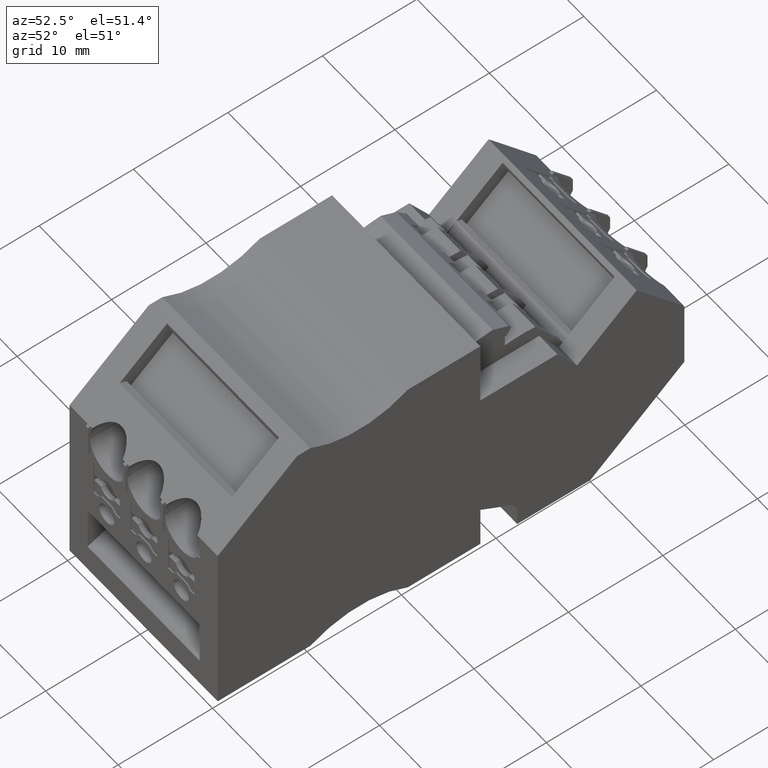
[diagram: clean part render]
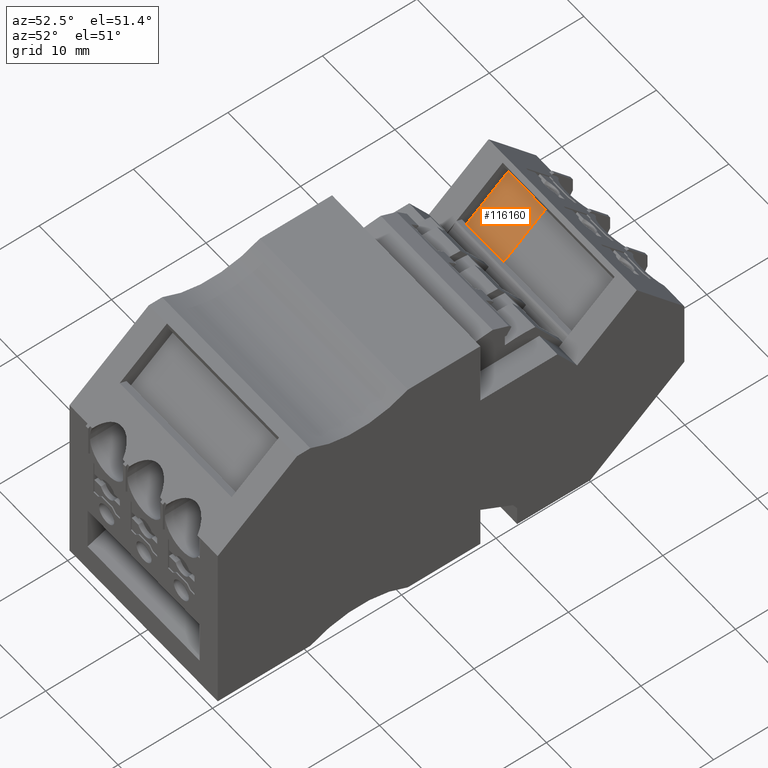
[diagram: same view with one face highlighted and labeled with its STEP entity id]
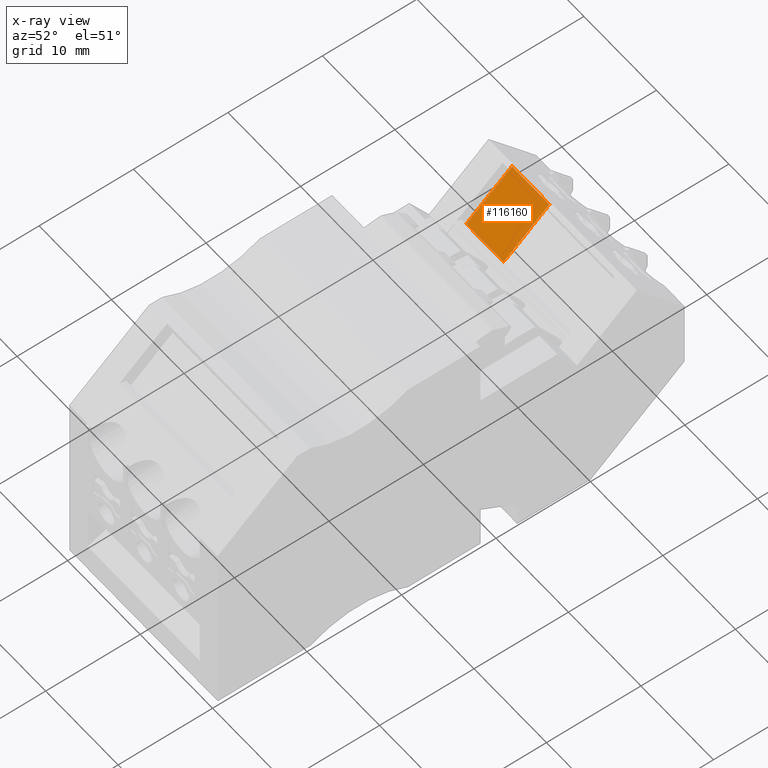
[diagram: x-ray of the same camera — body ghosted, the highlighted face saturated]
A machine part, auxiliary view. The second image highlights one B-rep face of the part: STEP entity #116160.
The next image is the same camera in x-ray: the body ghosted, the highlighted face saturated — about 0% of this face is hidden behind the body in this view.
In plain terms, the highlighted planar face has unit normal (-0, 0.6428, -0.766).
Its self-contained STEP definition (entity closure, byte-faithful):
#41550=CARTESIAN_POINT('',(465.396500997741,690.841400063605,
85.2749975649605));
#41560=DIRECTION('',(0.64278760909489,-0.76604444361543,
2.68778616175716E-10));
#41570=DIRECTION('',(-0.76604444361543,-0.64278760909489,
4.43142362006165E-10));
#41580=AXIS2_PLACEMENT_3D('',#41550,#41560,#41570);
#41590=PLANE('',#41580);
#41600=CARTESIAN_POINT('',(460.551269891873,686.775768436079,
85.2749975677634));
#41610=DIRECTION('',(1.6669925506053E-10,4.90742847764455E-10,1.));
#41620=VECTOR('',#41610,1.);
#41630=LINE('',#41600,#41620);
#41780=CARTESIAN_POINT('',(465.396500997741,690.841400063605,
85.2749975649605));
#41790=DIRECTION('',(1.6669925506053E-10,4.90742847764455E-10,1.));
#41800=VECTOR('',#41790,1.);
#41810=LINE('',#41780,#41800);
#59160=CARTESIAN_POINT('',(460.551269889014,686.775768427661,
68.1199999879381));
#59170=VERTEX_POINT('',#59160);
#59200=CARTESIAN_POINT('',(460.551269889872,686.775768430188,
73.2699999879381));
#59210=VERTEX_POINT('',#59200);
#59220=EDGE_CURVE('',#59170,#59210,#41630,.T.);
#82420=CARTESIAN_POINT('',(465.39650099773,690.841400057577,
68.1199999851744));
#82430=VERTEX_POINT('',#82420);
#82460=CARTESIAN_POINT('',(438.571064189054,668.332185960553,
68.1200000004755));
#82470=DIRECTION('',(-0.766044443615431,-0.642787609094891,
4.36950297750707E-10));
#82480=VECTOR('',#82470,1.);
#82490=LINE('',#82460,#82480);
#82500=EDGE_CURVE('',#82430,#59170,#82490,.T.);
#110500=CARTESIAN_POINT('',(465.39650099574,690.841400057713,
73.2699999851743));
#110510=VERTEX_POINT('',#110500);
#116040=ORIENTED_EDGE('',*,*,#59220,.T.);
#116050=ORIENTED_EDGE('',*,*,#82500,.T.);
#116060=EDGE_CURVE('',#82430,#110510,#41810,.T.);
#116070=ORIENTED_EDGE('',*,*,#116060,.F.);
#116080=CARTESIAN_POINT('',(438.571064189305,668.33218596257,
73.2700000004755));
#116090=DIRECTION('',(-0.766044443615431,-0.642787609094891,
4.36950297750707E-10));
#116100=VECTOR('',#116090,1.);
#116110=LINE('',#116080,#116100);
#116120=EDGE_CURVE('',#110510,#59210,#116110,.T.);
#116130=ORIENTED_EDGE('',*,*,#116120,.F.);
#116140=EDGE_LOOP('',(#116130,#116070,#116050,#116040));
#116150=FACE_OUTER_BOUND('',#116140,.T.);
#116160=ADVANCED_FACE('',(#116150),#41590,.F.);